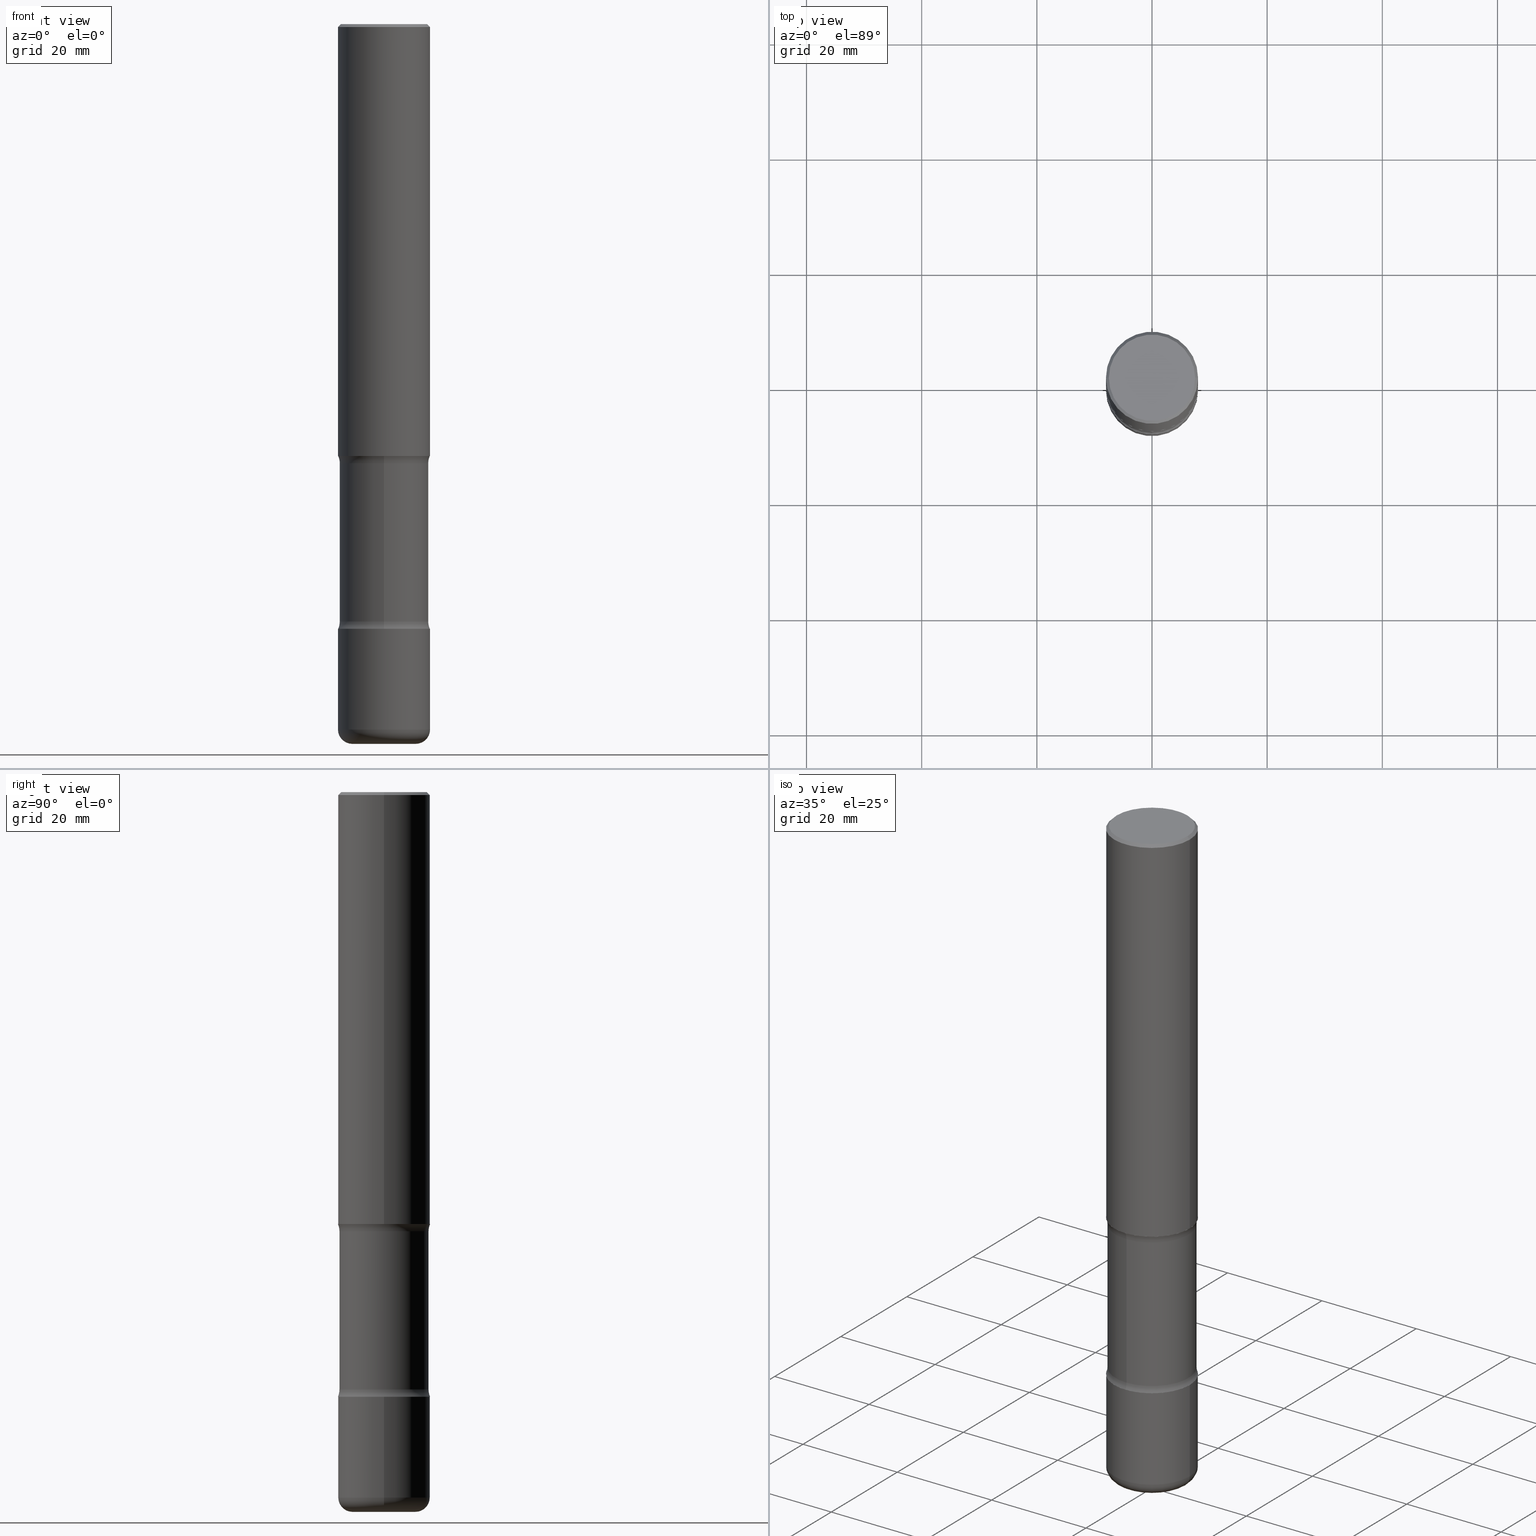
[diagram: canonical four-view strip — front | top / right | iso, engineering-drawing reading convention]
A machine part, canonical four-view strip (front | top / right | iso — engineering-drawing reading convention). The complete STEP part file that produces these views, byte-faithful:
ISO-10303-21;
HEADER;
FILE_DESCRIPTION (( 'STEP AP203' ),
    '1' );
FILE_NAME ('44835.STEP',
    '2024-03-02T03:43:14',
    ( '' ),
    ( '' ),
    'SwSTEP 2.0',
    'SolidWorks 2023',
    '' );
FILE_SCHEMA (( 'CONFIG_CONTROL_DESIGN' ));
ENDSEC;

DATA;
#1 = APPROVAL_PERSON_ORGANIZATION ( #419, #211, #329 ) ;
#2 = DIRECTION ( 'NONE',  ( 2.567670609238910692E-29, -3.316481401575452601E-15, -1.000000000000000000 ) ) ;
#3 = EDGE_LOOP ( 'NONE', ( #76, #196, #140, #171 ) ) ;
#4 = PERSON_AND_ORGANIZATION ( #470, #114 ) ;
#5 = EDGE_LOOP ( 'NONE', ( #474, #393, #135, #41 ) ) ;
#6 = FACE_OUTER_BOUND ( 'NONE', #102, .T. ) ;
#7 = ORIENTED_EDGE ( 'NONE', *, *, #360, .F. ) ;
#8 = AXIS2_PLACEMENT_3D ( 'NONE', #557, #471, #326 ) ;
#9 = EDGE_CURVE ( 'NONE', #260, #82, #488, .T. ) ;
#10 = CARTESIAN_POINT ( 'NONE',  ( 1.179425150535029431E-28, -1.683906534910660571E-14, -4.822899999999999743 ) ) ;
#11 = ORIENTED_EDGE ( 'NONE', *, *, #35, .T. ) ;
#12 = FACE_OUTER_BOUND ( 'NONE', #511, .T. ) ;
#13 = DIRECTION ( 'NONE',  ( 2.438088387897960049E-29, -3.491481338843145188E-15, -1.000000000000000000 ) ) ;
#14 = DIRECTION ( 'NONE',  ( 1.000000000000000000, -6.982962677686265922E-15, 0.000000000000000000 ) ) ;
#15 = ORIENTED_EDGE ( 'NONE', *, *, #301, .F. ) ;
#16 = ADVANCED_FACE ( 'NONE', ( #181 ), #535, .T. ) ;
#17 = COORDINATED_UNIVERSAL_TIME_OFFSET ( 5, 0, .BEHIND. ) ;
#18 = TOROIDAL_SURFACE ( 'NONE', #532, 0.4295500000000001539, 0.1249999999999999029 ) ;
#19 = CYLINDRICAL_SURFACE ( 'NONE', #79, 0.3045500000000001539 ) ;
#20 = DIRECTION ( 'NONE',  ( 2.567670609238910692E-29, -3.316481401575452601E-15, -1.000000000000000000 ) ) ;
#21 = LINE ( 'NONE', #234, #167 ) ;
#22 = FACE_OUTER_BOUND ( 'NONE', #289, .T. ) ;
#23 = DIRECTION ( 'NONE',  ( 1.000000000000000000, -6.982962677686266711E-15, 0.000000000000000000 ) ) ;
#24 = ADVANCED_FACE ( 'NONE', ( #97 ), #263, .T. ) ;
#25 = FACE_OUTER_BOUND ( 'NONE', #224, .T. ) ;
#26 = LINE ( 'NONE', #32, #236 ) ;
#27 = AXIS2_PLACEMENT_3D ( 'NONE', #353, #92, #54 ) ;
#28 = CIRCLE ( 'NONE', #515, 0.3045500000000002094 ) ;
#29 = CARTESIAN_POINT ( 'NONE',  ( 0.000000000000000000, 0.000000000000000000, 0.000000000000000000 ) ) ;
#30 = EDGE_CURVE ( 'NONE', #117, #390, #437, .T. ) ;
#31 = CARTESIAN_POINT ( 'NONE',  ( 1.010932349788873450E-28, -1.443343470664368071E-14, -4.133899999999999686 ) ) ;
#32 = CARTESIAN_POINT ( 'NONE',  ( 0.3149500000000000077, -2.199284095337289871E-15, 1.535751875536930130E-29 ) ) ;
#33 = DIMENSIONAL_EXPONENTS ( 1.000000000000000000, 0.000000000000000000, 0.000000000000000000, 0.000000000000000000, 0.000000000000000000, 0.000000000000000000, 0.000000000000000000 ) ;
#34 = LINE ( 'NONE', #501, #291 ) ;
#35 = EDGE_CURVE ( 'NONE', #387, #482, #280, .T. ) ;
#36 = DIRECTION ( 'NONE',  ( 2.567670609238910692E-29, -3.316481401575452995E-15, -1.000000000000000000 ) ) ;
#37 = AXIS2_PLACEMENT_3D ( 'NONE', #420, #411, #370 ) ;
#38 = APPROVAL_DATE_TIME ( #166, #211 ) ;
#39 = DIRECTION ( 'NONE',  ( 6.982962677686265922E-15, 1.000000000000000000, -3.316481401575452601E-15 ) ) ;
#40 = ORIENTED_EDGE ( 'NONE', *, *, #285, .T. ) ;
#41 = ORIENTED_EDGE ( 'NONE', *, *, #451, .F. ) ;
#42 =( NAMED_UNIT ( * ) PLANE_ANGLE_UNIT ( ) SI_UNIT ( $, .RADIAN. ) );
#43 = EDGE_CURVE ( 'NONE', #137, #390, #226, .T. ) ;
#44 = ORIENTED_EDGE ( 'NONE', *, *, #124, .F. ) ;
#45 = APPROVAL_STATUS ( 'not_yet_approved' ) ;
#46 = CARTESIAN_POINT ( 'NONE',  ( 1.203488563587891146E-28, -1.718262711284877024E-14, -4.921299999999999564 ) ) ;
#47 = CIRCLE ( 'NONE', #160, 0.1249999999999999029 ) ;
#48 = VERTEX_POINT ( 'NONE', #399 ) ;
#49 = PERSON_AND_ORGANIZATION_ROLE ( 'design_supplier' ) ;
#50 = DIRECTION ( 'NONE',  ( -2.445468806185136597E-29, 3.491481338843145583E-15, 1.000000000000000000 ) ) ;
#51 = ORIENTED_EDGE ( 'NONE', *, *, #441, .T. ) ;
#52 = APPROVAL ( #481, 'UNSPECIFIED' ) ;
#53 = CARTESIAN_POINT ( 'NONE',  ( 2.059624841783563274E-15, 0.2949499999999998789, -1.023409652156634744E-15 ) ) ;
#54 = DIRECTION ( 'NONE',  ( -1.000000000000000000, 7.105427357600994759E-15, 0.000000000000000000 ) ) ;
#55 = TOROIDAL_SURFACE ( 'NONE', #152, 0.4295500000000000429, 0.1249999999999998751 ) ;
#56 = DIRECTION ( 'NONE',  ( 1.000000000000000000, -6.982962677686265922E-15, 0.000000000000000000 ) ) ;
#57 = CARTESIAN_POINT ( 'NONE',  ( 2.937603563509088777E-28, 7.650886682985788601E-15, -4.921300000000000452 ) ) ;
#58 = CARTESIAN_POINT ( 'NONE',  ( 0.3149500000000002298, -1.903834944444389716E-14, -4.822899999999999743 ) ) ;
#59 = CARTESIAN_POINT ( 'NONE',  ( 0.3149499999999998967, -2.230543471175006266E-15, -0.02000000000000006981 ) ) ;
#60 = EDGE_CURVE ( 'NONE', #165, #206, #342, .T. ) ;
#61 = EDGE_LOOP ( 'NONE', ( #268, #337, #443, #467 ) ) ;
#62 = DIRECTION ( 'NONE',  ( 1.000000000000000000, -6.982962677686266711E-15, 4.876176775795936353E-29 ) ) ;
#63 = CARTESIAN_POINT ( 'NONE',  ( 4.890937612370289799E-31, -6.982962677686315028E-17, -0.02000000000000006981 ) ) ;
#64 = CIRCLE ( 'NONE', #217, 0.3149500000000001743 ) ;
#65 = AXIS2_PLACEMENT_3D ( 'NONE', #200, #20, #334 ) ;
#66 = DIRECTION ( 'NONE',  ( -2.445468806185136597E-29, 3.491481338843145583E-15, 1.000000000000000000 ) ) ;
#67 = CARTESIAN_POINT ( 'NONE',  ( 2.126661283489452747E-15, 0.3045499999999858320, -4.083981666694491253 ) ) ;
#68 = DIRECTION ( 'NONE',  ( 6.982962677686265922E-15, 1.000000000000000000, -3.588045304435082954E-15 ) ) ;
#69 = EDGE_CURVE ( 'NONE', #80, #82, #427, .T. ) ;
#70 = FACE_OUTER_BOUND ( 'NONE', #487, .T. ) ;
#71 = AXIS2_PLACEMENT_3D ( 'NONE', #10, #426, #259 ) ;
#72 = FACE_OUTER_BOUND ( 'NONE', #61, .T. ) ;
#73 = AXIS2_PLACEMENT_3D ( 'NONE', #505, #109, #39 ) ;
#74 = CC_DESIGN_APPROVAL ( #52, ( #218 ) ) ;
#75 = ADVANCED_FACE ( 'NONE', ( #25 ), #96, .F. ) ;
#76 = ORIENTED_EDGE ( 'NONE', *, *, #261, .T. ) ;
#77 = AXIS2_PLACEMENT_3D ( 'NONE', #357, #325, #94 ) ;
#78 = CYLINDRICAL_SURFACE ( 'NONE', #281, 0.3149500000000001743 ) ;
#79 = AXIS2_PLACEMENT_3D ( 'NONE', #231, #394, #188 ) ;
#80 = VERTEX_POINT ( 'NONE', #58 ) ;
#81 = DIRECTION ( 'NONE',  ( 2.567670609238910692E-29, -3.316481401575452601E-15, -1.000000000000000000 ) ) ;
#82 = VERTEX_POINT ( 'NONE', #403 ) ;
#83 = PERSON_AND_ORGANIZATION_ROLE ( 'design_owner' ) ;
#84 = ORIENTED_EDGE ( 'NONE', *, *, #91, .T. ) ;
#85 = MECHANICAL_CONTEXT ( 'NONE', #194, 'mechanical' ) ;
#86 = CARTESIAN_POINT ( 'NONE',  ( 7.204821578607410083E-29, -1.068189174724828138E-14, -3.002718333305510523 ) ) ;
#87 = CIRCLE ( 'NONE', #8, 0.1249999999999999029 ) ;
#88 = AXIS2_PLACEMENT_3D ( 'NONE', #209, #553, #125 ) ;
#89 = EDGE_LOOP ( 'NONE', ( #311, #434 ) ) ;
#90 = CARTESIAN_POINT ( 'NONE',  ( -2.125039254809662113E-15, -0.3045500000000108676, -3.002718333305509191 ) ) ;
#91 = EDGE_CURVE ( 'NONE', #485, #117, #26, .T. ) ;
#92 = DIRECTION ( 'NONE',  ( 7.105427357601001859E-15, 1.000000000000000000, -3.491481338843145583E-15 ) ) ;
#93 = ORIENTED_EDGE ( 'NONE', *, *, #43, .T. ) ;
#94 = DIRECTION ( 'NONE',  ( 6.982962677686265922E-15, 1.000000000000000000, -3.316481401575452601E-15 ) ) ;
#95 = MANIFOLD_SOLID_BREP ( 'Body-Move/Copy2[1]', #151 ) ;
#96 = TOROIDAL_SURFACE ( 'NONE', #77, 0.4295500000000001539, 0.1249999999999999029 ) ;
#97 = FACE_OUTER_BOUND ( 'NONE', #257, .T. ) ;
#98 = CIRCLE ( 'NONE', #256, 0.3149500000000001743 ) ;
#99 = PLANE ( 'NONE',  #428 ) ;
#100 = ORIENTED_EDGE ( 'NONE', *, *, #172, .F. ) ;
#101 = DIRECTION ( 'NONE',  ( 6.982962677686265922E-15, 1.000000000000000000, -3.588045304435084532E-15 ) ) ;
#102 = EDGE_LOOP ( 'NONE', ( #503, #526 ) ) ;
#103 = DIRECTION ( 'NONE',  ( 2.567670609238910692E-29, -3.316481401575452601E-15, -1.000000000000000000 ) ) ;
#104 = VECTOR ( 'NONE', #402, 39.37007874015748143 ) ;
#105 = DIRECTION ( 'NONE',  ( 6.982962677686264344E-15, 1.000000000000000000, -3.469564049740291192E-15 ) ) ;
#106 = ADVANCED_FACE ( 'NONE', ( #383 ), #304, .T. ) ;
#107 = LINE ( 'NONE', #59, #490 ) ;
#108 = ORIENTED_EDGE ( 'NONE', *, *, #380, .F. ) ;
#109 = DIRECTION ( 'NONE',  ( 2.567670609238910692E-29, -3.316481401575452601E-15, -1.000000000000000000 ) ) ;
#110 = DIRECTION ( 'NONE',  ( -1.000000000000000000, 6.982962677686265922E-15, -4.876176775795935793E-29 ) ) ;
#111 = CLOSED_SHELL ( 'NONE', ( #344, #205, #504, #241, #476, #284 ) ) ;
#112 = CIRCLE ( 'NONE', #323, 0.1249999999999999029 ) ;
#113 = EDGE_CURVE ( 'NONE', #336, #80, #176, .T. ) ;
#114 = ORGANIZATION ( 'UNSPECIFIED', 'UNSPECIFIED', '' ) ;
#115 = ORIENTED_EDGE ( 'NONE', *, *, #494, .F. ) ;
#116 = CARTESIAN_POINT ( 'NONE',  ( 1.179425150535029431E-28, -1.683906534910660571E-14, -4.822899999999999743 ) ) ;
#117 = VERTEX_POINT ( 'NONE', #174 ) ;
#118 = EDGE_CURVE ( 'NONE', #265, #48, #385, .T. ) ;
#119 = COORDINATED_UNIVERSAL_TIME_OFFSET ( 5, 0, .BEHIND. ) ;
#120 = CARTESIAN_POINT ( 'NONE',  ( 2.199284095337390845E-15, 0.3149499999999856859, -4.133900000000000574 ) ) ;
#121 = CIRCLE ( 'NONE', #405, 0.3149499999999998967 ) ;
#122 =( GEOMETRIC_REPRESENTATION_CONTEXT ( 3 ) GLOBAL_UNCERTAINTY_ASSIGNED_CONTEXT ( ( #462 ) ) GLOBAL_UNIT_ASSIGNED_CONTEXT ( ( #287, #42, #368 ) ) REPRESENTATION_CONTEXT ( 'NONE', 'WORKASPACE' ) );
#123 = EDGE_LOOP ( 'NONE', ( #341, #446 ) ) ;
#124 = EDGE_CURVE ( 'NONE', #387, #492, #376, .T. ) ;
#125 = DIRECTION ( 'NONE',  ( 6.982962677686265922E-15, 1.000000000000000000, -3.588045304435084532E-15 ) ) ;
#126 = ORIENTED_EDGE ( 'NONE', *, *, #220, .T. ) ;
#127 = CARTESIAN_POINT ( 'NONE',  ( 1.010932349788873450E-28, -1.443343470664368071E-14, -4.133899999999999686 ) ) ;
#128 = CALENDAR_DATE ( 2024, 1, 3 ) ;
#129 = ORIENTED_EDGE ( 'NONE', *, *, #91, .F. ) ;
#130 = ADVANCED_FACE ( 'NONE', ( #6 ), #305, .F. ) ;
#131 = DIRECTION ( 'NONE',  ( 1.000000000000000000, -6.982962677686256455E-15, 0.000000000000000000 ) ) ;
#132 = AXIS2_PLACEMENT_3D ( 'NONE', #364, #278, #509 ) ;
#133 = AXIS2_PLACEMENT_3D ( 'NONE', #525, #254, #170 ) ;
#134 = PRODUCT_DEFINITION_FORMATION_WITH_SPECIFIED_SOURCE ( 'ANY', '', #155, .NOT_KNOWN. ) ;
#135 = ORIENTED_EDGE ( 'NONE', *, *, #528, .T. ) ;
#136 = DIRECTION ( 'NONE',  ( 2.567670609238910692E-29, -3.316481401575452601E-15, -1.000000000000000000 ) ) ;
#137 = VERTEX_POINT ( 'NONE', #142 ) ;
#138 = SHAPE_DEFINITION_REPRESENTATION ( #508, #486 ) ;
#139 = DIRECTION ( 'NONE',  ( 6.982962677686265922E-15, 1.000000000000000000, -3.316481401575452995E-15 ) ) ;
#140 = ORIENTED_EDGE ( 'NONE', *, *, #69, .F. ) ;
#141 = DIRECTION ( 'NONE',  ( -2.445468806185136597E-29, 3.491481338843145583E-15, 1.000000000000000000 ) ) ;
#142 = CARTESIAN_POINT ( 'NONE',  ( -0.2949499999999998789, 2.094539655171994924E-15, 1.280553747028670770E-17 ) ) ;
#143 = AXIS2_PLACEMENT_3D ( 'NONE', #127, #2, #215 ) ;
#144 = ORIENTED_EDGE ( 'NONE', *, *, #156, .F. ) ;
#145 = AXIS2_PLACEMENT_3D ( 'NONE', #310, #493, #101 ) ;
#146 = DIRECTION ( 'NONE',  ( -1.000000000000000000, 6.982962677686265922E-15, -4.876176775795935793E-29 ) ) ;
#147 = CARTESIAN_POINT ( 'NONE',  ( 0.000000000000000000, 0.000000000000000000, 0.000000000000000000 ) ) ;
#148 = DIRECTION ( 'NONE',  ( 2.438088387897960049E-29, -3.491481338843145188E-15, -1.000000000000000000 ) ) ;
#149 = CARTESIAN_POINT ( 'NONE',  ( 4.890937612370289799E-31, -6.982962677686315028E-17, -0.02000000000000006981 ) ) ;
#150 = CC_DESIGN_PERSON_AND_ORGANIZATION_ASSIGNMENT ( #514, #294, ( #197 ) ) ;
#151 = CLOSED_SHELL ( 'NONE', ( #16, #106, #24, #250, #457, #350 ) ) ;
#152 = AXIS2_PLACEMENT_3D ( 'NONE', #199, #506, #408 ) ;
#153 = DIRECTION ( 'NONE',  ( -2.445468806185136597E-29, 3.491481338843145583E-15, 1.000000000000000000 ) ) ;
#154 = DIRECTION ( 'NONE',  ( 2.567670609238910692E-29, -3.316481401575452601E-15, -1.000000000000000000 ) ) ;
#155 = PRODUCT ( '44835', '44835', '', ( #85 ) ) ;
#156 = EDGE_CURVE ( 'NONE', #260, #336, #210, .T. ) ;
#157 = CARTESIAN_POINT ( 'NONE',  ( 4.890937612370289799E-31, -6.982962677686315028E-17, -0.02000000000000006981 ) ) ;
#158 = FACE_OUTER_BOUND ( 'NONE', #5, .T. ) ;
#159 = DIRECTION ( 'NONE',  ( 1.000000000000000000, -6.982962677686267499E-15, 4.876053491004736589E-29 ) ) ;
#160 = AXIS2_PLACEMENT_3D ( 'NONE', #177, #221, #389 ) ;
#161 = DIRECTION ( 'NONE',  ( 1.000000000000000000, -6.982962677686272233E-15, 0.000000000000000000 ) ) ;
#162 = LINE ( 'NONE', #328, #193 ) ;
#163 = ORIENTED_EDGE ( 'NONE', *, *, #69, .T. ) ;
#164 = CC_DESIGN_DATE_AND_TIME_ASSIGNMENT ( #410, #469, ( #197 ) ) ;
#165 = VERTEX_POINT ( 'NONE', #491 ) ;
#166 = DATE_AND_TIME ( #558, #282 ) ;
#167 = VECTOR ( 'NONE', #454, 39.37007874015748143 ) ;
#168 = EDGE_LOOP ( 'NONE', ( #440, #478 ) ) ;
#169 =( LENGTH_UNIT ( ) NAMED_UNIT ( * ) SI_UNIT ( $, .METRE. ) );
#170 = DIRECTION ( 'NONE',  ( -1.000000000000000000, 6.982962677686265922E-15, 0.000000000000000000 ) ) ;
#171 = ORIENTED_EDGE ( 'NONE', *, *, #113, .F. ) ;
#172 = EDGE_CURVE ( 'NONE', #492, #308, #47, .T. ) ;
#173 = PERSON_AND_ORGANIZATION ( #470, #114 ) ;
#174 = CARTESIAN_POINT ( 'NONE',  ( 0.3149499999999998967, -2.230543471175006266E-15, -0.02000000000000006981 ) ) ;
#175 = ORIENTED_EDGE ( 'NONE', *, *, #43, .F. ) ;
#176 = CIRCLE ( 'NONE', #498, 0.09840000000000007074 ) ;
#177 = CARTESIAN_POINT ( 'NONE',  ( -2.946926914942662145E-15, -0.4295500000000144203, -4.083981666694488588 ) ) ;
#178 = AXIS2_PLACEMENT_3D ( 'NONE', #157, #539, #321 ) ;
#179 = EDGE_LOOP ( 'NONE', ( #422, #183, #292, #302 ) ) ;
#180 = CARTESIAN_POINT ( 'NONE',  ( 7.220980290903470182E-29, -1.030964609733603853E-14, -2.952799999999999869 ) ) ;
#181 = FACE_OUTER_BOUND ( 'NONE', #214, .T. ) ;
#182 = DIRECTION ( 'NONE',  ( -2.445468806185136877E-29, 3.491481338843145188E-15, 1.000000000000000000 ) ) ;
#183 = ORIENTED_EDGE ( 'NONE', *, *, #172, .T. ) ;
#184 = DIRECTION ( 'NONE',  ( -2.445468806185136597E-29, 3.491481338843145583E-15, 1.000000000000000000 ) ) ;
#185 = ORIENTED_EDGE ( 'NONE', *, *, #245, .F. ) ;
#186 = VECTOR ( 'NONE', #36, 39.37007874015748143 ) ;
#187 = DATE_AND_TIME ( #444, #460 ) ;
#188 = DIRECTION ( 'NONE',  ( 6.982962677686267499E-15, 1.000000000000000000, -3.588045304435083743E-15 ) ) ;
#189 = ADVANCED_FACE ( 'NONE', ( #297 ), #18, .F. ) ;
#190 = CARTESIAN_POINT ( 'NONE',  ( 1.203488563587891146E-28, -1.718262711284877024E-14, -4.921299999999999564 ) ) ;
#191 = DIRECTION ( 'NONE',  ( 1.000000000000000000, -6.982962677686265922E-15, 0.000000000000000000 ) ) ;
#192 = CARTESIAN_POINT ( 'NONE',  ( 7.220980290903470182E-29, -1.030964609733603853E-14, -2.952799999999999869 ) ) ;
#193 = VECTOR ( 'NONE', #510, 39.37007874015748143 ) ;
#194 = APPLICATION_CONTEXT ( 'configuration controlled 3d designs of mechanical parts and assemblies' ) ;
#195 = CARTESIAN_POINT ( 'NONE',  ( 0.3149500000000001743, -1.250893019267332998E-14, -2.952799999999999869 ) ) ;
#196 = ORIENTED_EDGE ( 'NONE', *, *, #9, .T. ) ;
#197 = PRODUCT_DEFINITION ( 'UNKNOWN', '', #134, #240 ) ;
#198 = DATE_TIME_ROLE ( 'classification_date' ) ;
#199 = CARTESIAN_POINT ( 'NONE',  ( 7.199981073502327876E-29, -1.068882362606320242E-14, -3.002718333305510523 ) ) ;
#200 = CARTESIAN_POINT ( 'NONE',  ( 7.076647741316658442E-29, -1.051633852324290964E-14, -2.952799999999999869 ) ) ;
#201 = PERSON_AND_ORGANIZATION_ROLE ( 'classification_officer' ) ;
#202 = AXIS2_PLACEMENT_3D ( 'NONE', #53, #148, #315 ) ;
#203 = VERTEX_POINT ( 'NONE', #90 ) ;
#204 = DIRECTION ( 'NONE',  ( 1.000000000000000000, 0.000000000000000000, 0.000000000000000000 ) ) ;
#205 = ADVANCED_FACE ( 'NONE', ( #12 ), #459, .T. ) ;
#206 = VERTEX_POINT ( 'NONE', #295 ) ;
#207 = DIRECTION ( 'NONE',  ( -2.445468806185136597E-29, 3.491481338843145583E-15, 1.000000000000000000 ) ) ;
#208 = ORIENTED_EDGE ( 'NONE', *, *, #253, .F. ) ;
#209 = CARTESIAN_POINT ( 'NONE',  ( 9.981149660597986220E-29, -1.426788148263830897E-14, -4.083981666694489476 ) ) ;
#210 = CIRCLE ( 'NONE', #531, 0.2165500000000002145 ) ;
#211 = APPROVAL ( #415, 'UNSPECIFIED' ) ;
#212 = EDGE_LOOP ( 'NONE', ( #375, #417, #290, #15 ) ) ;
#213 = SECURITY_CLASSIFICATION_LEVEL ( 'unclassified' ) ;
#214 = EDGE_LOOP ( 'NONE', ( #163, #371, #384, #520 ) ) ;
#215 = DIRECTION ( 'NONE',  ( 6.982962677686264344E-15, 1.000000000000000000, -3.469564049740291192E-15 ) ) ;
#216 = VERTEX_POINT ( 'NONE', #477 ) ;
#217 = AXIS2_PLACEMENT_3D ( 'NONE', #116, #373, #161 ) ;
#218 = SECURITY_CLASSIFICATION ( '', '', #213 ) ;
#219 = APPLICATION_CONTEXT ( 'configuration controlled 3d designs of mechanical parts and assemblies' ) ;
#220 = EDGE_CURVE ( 'NONE', #286, #203, #28, .T. ) ;
#221 = DIRECTION ( 'NONE',  ( 1.000000000000000000, -6.860497997771530774E-15, 4.842942010754402141E-29 ) ) ;
#222 = ORIENTED_EDGE ( 'NONE', *, *, #554, .F. ) ;
#223 = DIRECTION ( 'NONE',  ( 1.000000000000000000, -6.982962677686269866E-15, 4.883557194083114022E-29 ) ) ;
#224 = EDGE_LOOP ( 'NONE', ( #100, #44, #11, #251 ) ) ;
#225 = CARTESIAN_POINT ( 'NONE',  ( 1.010932349788873450E-28, -1.443343470664368071E-14, -4.133899999999999686 ) ) ;
#226 = LINE ( 'NONE', #450, #332 ) ;
#227 = CIRCLE ( 'NONE', #449, 0.3149500000000001743 ) ;
#228 = CC_DESIGN_DATE_AND_TIME_ASSIGNMENT ( #273, #198, ( #218 ) ) ;
#229 = LOCAL_TIME ( 22, 43, 14.00000000000000000, #119 ) ;
#230 = PLANE ( 'NONE',  #395 ) ;
#231 = CARTESIAN_POINT ( 'NONE',  ( 1.213110733560345635E-28, -1.704483216224419265E-14, -4.921300000000000452 ) ) ;
#232 = DIRECTION ( 'NONE',  ( -0.7071067811865459074, 2.468850131082240100E-15, -0.7071067811865491270 ) ) ;
#233 = CARTESIAN_POINT ( 'NONE',  ( -2.160713844398043177E-15, -0.3149500000000144961, -4.133899999999998798 ) ) ;
#234 = CARTESIAN_POINT ( 'NONE',  ( -0.3149500000000000077, 2.237854346276435590E-15, -1.549218606675782676E-29 ) ) ;
#235 = CYLINDRICAL_SURFACE ( 'NONE', #237, 0.3149500000000000077 ) ;
#236 = VECTOR ( 'NONE', #182, 39.37007874015748143 ) ;
#237 = AXIS2_PLACEMENT_3D ( 'NONE', #404, #184, #62 ) ;
#238 = CARTESIAN_POINT ( 'NONE',  ( -3.131554243005659264E-46, 4.471029511141341874E-32, 1.280553747030123384E-17 ) ) ;
#239 = CARTESIAN_POINT ( 'NONE',  ( 1.213110733560345635E-28, -1.704483216224419265E-14, -4.921300000000000452 ) ) ;
#240 = DESIGN_CONTEXT ( 'detailed design', #219, 'design' ) ;
#241 = ADVANCED_FACE ( 'NONE', ( #484 ), #435, .F. ) ;
#242 = PLANE ( 'NONE',  #37 ) ;
#243 = ORIENTED_EDGE ( 'NONE', *, *, #261, .F. ) ;
#244 = AXIS2_PLACEMENT_3D ( 'NONE', #63, #313, #191 ) ;
#245 = EDGE_CURVE ( 'NONE', #216, #485, #262, .T. ) ;
#246 = AXIS2_PLACEMENT_3D ( 'NONE', #551, #207, #369 ) ;
#247 = PERSON_AND_ORGANIZATION ( #470, #114 ) ;
#248 = CARTESIAN_POINT ( 'NONE',  ( 0.000000000000000000, 0.000000000000000000, 0.000000000000000000 ) ) ;
#249 = COORDINATED_UNIVERSAL_TIME_OFFSET ( 5, 0, .BEHIND. ) ;
#250 = ADVANCED_FACE ( 'NONE', ( #355 ), #333, .T. ) ;
#251 = ORIENTED_EDGE ( 'NONE', *, *, #554, .T. ) ;
#252 = COORDINATED_UNIVERSAL_TIME_OFFSET ( 5, 0, .BEHIND. ) ;
#253 = EDGE_CURVE ( 'NONE', #485, #216, #98, .T. ) ;
#254 = DIRECTION ( 'NONE',  ( 2.445468806185136597E-29, -3.491481338843145583E-15, -1.000000000000000000 ) ) ;
#255 = ORIENTED_EDGE ( 'NONE', *, *, #339, .F. ) ;
#256 = AXIS2_PLACEMENT_3D ( 'NONE', #502, #541, #14 ) ;
#257 = EDGE_LOOP ( 'NONE', ( #243, #144 ) ) ;
#258 = EDGE_LOOP ( 'NONE', ( #359, #513, #530, #108 ) ) ;
#259 = DIRECTION ( 'NONE',  ( 1.000000000000000000, -6.982962677686269866E-15, 4.883557194083114022E-29 ) ) ;
#260 = VERTEX_POINT ( 'NONE', #500 ) ;
#261 = EDGE_CURVE ( 'NONE', #336, #260, #386, .T. ) ;
#262 = CIRCLE ( 'NONE', #499, 0.3149500000000001743 ) ;
#263 = PLANE ( 'NONE',  #447 ) ;
#264 = CARTESIAN_POINT ( 'NONE',  ( 1.010932349788873450E-28, -1.443343470664368071E-14, -4.133899999999999686 ) ) ;
#265 = VERTEX_POINT ( 'NONE', #537 ) ;
#266 = CARTESIAN_POINT ( 'NONE',  ( 0.2165500000000002145, -1.869478768070173264E-14, -4.921299999999999564 ) ) ;
#267 = ADVANCED_FACE ( 'NONE', ( #318 ), #19, .T. ) ;
#268 = ORIENTED_EDGE ( 'NONE', *, *, #421, .F. ) ;
#269 = MANIFOLD_SOLID_BREP ( 'Body-Move/Copy2[4]', #560 ) ;
#270 = CYLINDRICAL_SURFACE ( 'NONE', #272, 0.3149500000000000077 ) ;
#271 = AXIS2_PLACEMENT_3D ( 'NONE', #147, #347, #529 ) ;
#272 = AXIS2_PLACEMENT_3D ( 'NONE', #29, #66, #358 ) ;
#273 = DATE_AND_TIME ( #463, #414 ) ;
#274 = CARTESIAN_POINT ( 'NONE',  ( 1.179425150535029431E-28, -1.683906534910660571E-14, -4.822899999999999743 ) ) ;
#275 = MANIFOLD_SOLID_BREP ( 'Body-Move/Copy2[2]', #111 ) ;
#276 = EDGE_CURVE ( 'NONE', #492, #387, #227, .T. ) ;
#277 = CARTESIAN_POINT ( 'NONE',  ( 2.999531618200207687E-15, 0.4295499999999893292, -3.002718333305511855 ) ) ;
#278 = DIRECTION ( 'NONE',  ( -1.000000000000000000, 6.982962677686265922E-15, -4.883557194083112901E-29 ) ) ;
#279 = APPROVAL ( #45, 'UNSPECIFIED' ) ;
#280 = CIRCLE ( 'NONE', #132, 0.1249999999999999029 ) ;
#281 = AXIS2_PLACEMENT_3D ( 'NONE', #248, #330, #416 ) ;
#282 = LOCAL_TIME ( 22, 43, 14.00000000000000000, #252 ) ;
#283 = CARTESIAN_POINT ( 'NONE',  ( 0.2949499999999998789, -2.127023677808859286E-15, 1.280553747031587399E-17 ) ) ;
#284 = ADVANCED_FACE ( 'NONE', ( #538 ), #270, .T. ) ;
#285 = EDGE_CURVE ( 'NONE', #390, #117, #121, .T. ) ;
#286 = VERTEX_POINT ( 'NONE', #453 ) ;
#287 =( CONVERSION_BASED_UNIT ( 'INCH', #381 ) LENGTH_UNIT ( ) NAMED_UNIT ( #33 ) );
#288 = DIRECTION ( 'NONE',  ( -2.445468806185136597E-29, 3.491481338843145583E-15, 1.000000000000000000 ) ) ;
#289 = EDGE_LOOP ( 'NONE', ( #472, #115, #93, #40 ) ) ;
#290 = ORIENTED_EDGE ( 'NONE', *, *, #546, .T. ) ;
#291 = VECTOR ( 'NONE', #397, 39.37007874015748143 ) ;
#292 = ORIENTED_EDGE ( 'NONE', *, *, #360, .T. ) ;
#293 = APPROVAL_DATE_TIME ( #516, #279 ) ;
#294 = PERSON_AND_ORGANIZATION_ROLE ( 'creator' ) ;
#295 = CARTESIAN_POINT ( 'NONE',  ( -2.160713844398075915E-15, -0.3149500000000109434, -2.952799999999998537 ) ) ;
#296 = CIRCLE ( 'NONE', #438, 0.3045500000000002094 ) ;
#297 = FACE_OUTER_BOUND ( 'NONE', #179, .T. ) ;
#298 = ORIENTED_EDGE ( 'NONE', *, *, #30, .T. ) ;
#299 = CARTESIAN_POINT ( 'NONE',  ( 1.179425150535029431E-28, -1.683906534910660571E-14, -4.822899999999999743 ) ) ;
#300 = DIRECTION ( 'NONE',  ( 6.982962677686265922E-15, 1.000000000000000000, -3.588045304435082954E-15 ) ) ;
#301 = EDGE_CURVE ( 'NONE', #286, #165, #112, .T. ) ;
#302 = ORIENTED_EDGE ( 'NONE', *, *, #35, .F. ) ;
#303 = EDGE_LOOP ( 'NONE', ( #208, #185 ) ) ;
#304 = TOROIDAL_SURFACE ( 'NONE', #71, 0.2165500000000002145, 0.09840000000000008462 ) ;
#305 = PLANE ( 'NONE',  #458 ) ;
#306 = CIRCLE ( 'NONE', #145, 0.3045500000000000984 ) ;
#307 = CC_DESIGN_SECURITY_CLASSIFICATION ( #218, ( #134 ) ) ;
#308 = VERTEX_POINT ( 'NONE', #354 ) ;
#309 = EDGE_CURVE ( 'NONE', #203, #286, #296, .T. ) ;
#310 = CARTESIAN_POINT ( 'NONE',  ( 9.981149660597986220E-29, -1.426788148263830897E-14, -4.083981666694489476 ) ) ;
#311 = ORIENTED_EDGE ( 'NONE', *, *, #494, .T. ) ;
#312 = DIRECTION ( 'NONE',  ( -1.000000000000000000, 6.982962677686265922E-15, -4.883557194083112901E-29 ) ) ;
#313 = DIRECTION ( 'NONE',  ( -2.445468806185136597E-29, 3.491481338843145583E-15, 1.000000000000000000 ) ) ;
#314 = CARTESIAN_POINT ( 'NONE',  ( 7.220980290903470182E-29, -1.030964609733603853E-14, -2.952799999999999869 ) ) ;
#315 = DIRECTION ( 'NONE',  ( -1.000000000000000000, 6.982962677686265922E-15, -4.876176775795935793E-29 ) ) ;
#316 = AXIS2_PLACEMENT_3D ( 'NONE', #423, #391, #547 ) ;
#317 = CIRCLE ( 'NONE', #343, 0.2949499999999998789 ) ;
#318 = FACE_OUTER_BOUND ( 'NONE', #331, .T. ) ;
#319 = EDGE_CURVE ( 'NONE', #425, #117, #107, .T. ) ;
#320 = DIRECTION ( 'NONE',  ( -2.445468806185136597E-29, 3.491481338843145583E-15, 1.000000000000000000 ) ) ;
#321 = DIRECTION ( 'NONE',  ( -1.000000000000000000, 6.982962677686265922E-15, 0.000000000000000000 ) ) ;
#322 = LINE ( 'NONE', #559, #186 ) ;
#323 = AXIS2_PLACEMENT_3D ( 'NONE', #277, #312, #496 ) ;
#324 = CIRCLE ( 'NONE', #88, 0.3045500000000000984 ) ;
#325 = DIRECTION ( 'NONE',  ( 2.567670609238910692E-29, -3.316481401575452601E-15, -1.000000000000000000 ) ) ;
#326 = DIRECTION ( 'NONE',  ( 6.860497997771529985E-15, 1.000000000000000000, 0.000000000000000000 ) ) ;
#327 = CC_DESIGN_PERSON_AND_ORGANIZATION_ASSIGNMENT ( #429, #49, ( #134 ) ) ;
#328 = CARTESIAN_POINT ( 'NONE',  ( -2.089364665221199401E-15, -0.3045500000000171958, -4.921299999999999564 ) ) ;
#329 = APPROVAL_ROLE ( '' ) ;
#330 = DIRECTION ( 'NONE',  ( -2.445468806185136597E-29, 3.491481338843145583E-15, 1.000000000000000000 ) ) ;
#331 = EDGE_LOOP ( 'NONE', ( #436, #517, #432, #7 ) ) ;
#332 = VECTOR ( 'NONE', #232, 39.37007874015748143 ) ;
#333 = TOROIDAL_SURFACE ( 'NONE', #479, 0.2165500000000002145, 0.09840000000000008462 ) ;
#334 = DIRECTION ( 'NONE',  ( 6.982962677686265922E-15, 1.000000000000000000, -3.469564049740288825E-15 ) ) ;
#335 = AXIS2_PLACEMENT_3D ( 'NONE', #556, #372, #204 ) ;
#336 = VERTEX_POINT ( 'NONE', #266 ) ;
#337 = ORIENTED_EDGE ( 'NONE', *, *, #220, .F. ) ;
#338 = COORDINATED_UNIVERSAL_TIME_OFFSET ( 5, 0, .BEHIND. ) ;
#339 = EDGE_CURVE ( 'NONE', #216, #390, #21, .T. ) ;
#340 = DIRECTION ( 'NONE',  ( -2.445468806185136597E-29, 3.491481338843145583E-15, 1.000000000000000000 ) ) ;
#341 = ORIENTED_EDGE ( 'NONE', *, *, #124, .T. ) ;
#342 = CIRCLE ( 'NONE', #316, 0.3149500000000003963 ) ;
#343 = AXIS2_PLACEMENT_3D ( 'NONE', #238, #356, #159 ) ;
#344 = ADVANCED_FACE ( 'NONE', ( #70 ), #235, .T. ) ;
#345 = DIRECTION ( 'NONE',  ( 6.982962677686265922E-15, 1.000000000000000000, -3.316481401575452601E-15 ) ) ;
#346 = ORIENTED_EDGE ( 'NONE', *, *, #30, .F. ) ;
#347 = DIRECTION ( 'NONE',  ( -2.445468806185136597E-29, 3.491481338843145583E-15, 1.000000000000000000 ) ) ;
#348 = DIRECTION ( 'NONE',  ( 2.567670609238910692E-29, -3.316481401575452601E-15, -1.000000000000000000 ) ) ;
#349 = ORIENTED_EDGE ( 'NONE', *, *, #253, .T. ) ;
#350 = ADVANCED_FACE ( 'NONE', ( #543 ), #99, .F. ) ;
#351 = DIRECTION ( 'NONE',  ( -2.445468806185136597E-29, 3.491481338843145583E-15, 1.000000000000000000 ) ) ;
#352 = AXIS2_PLACEMENT_3D ( 'NONE', #190, #320, #23 ) ;
#353 = CARTESIAN_POINT ( 'NONE',  ( -0.2165500000000002145, -1.530038505481810704E-14, -4.822899999999999743 ) ) ;
#354 = CARTESIAN_POINT ( 'NONE',  ( -2.125039254809631347E-15, -0.3045500000000143648, -4.083981666694488588 ) ) ;
#355 = FACE_OUTER_BOUND ( 'NONE', #258, .T. ) ;
#356 = DIRECTION ( 'NONE',  ( -2.445468806185136597E-29, 3.491481338843145583E-15, 1.000000000000000000 ) ) ;
#357 = CARTESIAN_POINT ( 'NONE',  ( 9.987249770933360276E-29, -1.425914577744133888E-14, -4.083981666694490364 ) ) ;
#358 = DIRECTION ( 'NONE',  ( 1.000000000000000000, -6.982962677686266711E-15, 4.876176775795936353E-29 ) ) ;
#359 = ORIENTED_EDGE ( 'NONE', *, *, #9, .F. ) ;
#360 = EDGE_CURVE ( 'NONE', #308, #482, #306, .T. ) ;
#361 = CIRCLE ( 'NONE', #65, 0.3149500000000003963 ) ;
#362 = FACE_OUTER_BOUND ( 'NONE', #303, .T. ) ;
#363 = DIRECTION ( 'NONE',  ( 0.7071067811865459074, -7.319954787623249734E-15, -0.7071067811865491270 ) ) ;
#364 = CARTESIAN_POINT ( 'NONE',  ( 2.999531618200236480E-15, 0.4295499999999858876, -4.083981666694492141 ) ) ;
#365 = ADVANCED_FACE ( 'NONE', ( #445 ), #242, .F. ) ;
#366 = TOROIDAL_SURFACE ( 'NONE', #73, 0.4295500000000000429, 0.1249999999999998751 ) ;
#367 = APPROVAL_PERSON_ORGANIZATION ( #4, #279, #521 ) ;
#368 =( NAMED_UNIT ( * ) SI_UNIT ( $, .STERADIAN. ) SOLID_ANGLE_UNIT ( ) );
#369 = DIRECTION ( 'NONE',  ( 1.000000000000000000, -6.982962677686267499E-15, 4.876053491004736589E-29 ) ) ;
#370 = DIRECTION ( 'NONE',  ( -6.982962677686265922E-15, -1.000000000000000000, 3.316481401575452995E-15 ) ) ;
#371 = ORIENTED_EDGE ( 'NONE', *, *, #489, .T. ) ;
#372 = DIRECTION ( 'NONE',  ( 0.000000000000000000, 0.000000000000000000, 1.000000000000000000 ) ) ;
#373 = DIRECTION ( 'NONE',  ( -2.445468806185136597E-29, 3.491481338843145583E-15, 1.000000000000000000 ) ) ;
#374 = CC_DESIGN_PERSON_AND_ORGANIZATION_ASSIGNMENT ( #247, #83, ( #155 ) ) ;
#375 = ORIENTED_EDGE ( 'NONE', *, *, #309, .F. ) ;
#376 = CIRCLE ( 'NONE', #143, 0.3149500000000001743 ) ;
#377 = CIRCLE ( 'NONE', #540, 0.3149500000000001743 ) ;
#378 = APPLICATION_PROTOCOL_DEFINITION ( 'international standard', 'config_control_design', 1994, #194 ) ;
#379 = ORIENTED_EDGE ( 'NONE', *, *, #319, .T. ) ;
#380 = EDGE_CURVE ( 'NONE', #82, #80, #64, .T. ) ;
#381 = LENGTH_MEASURE_WITH_UNIT ( LENGTH_MEASURE( 0.02539999999999999897 ), #169 );
#382 = DIRECTION ( 'NONE',  ( 1.000000000000000000, -6.982962677686266711E-15, 0.000000000000000000 ) ) ;
#383 = FACE_OUTER_BOUND ( 'NONE', #3, .T. ) ;
#384 = ORIENTED_EDGE ( 'NONE', *, *, #118, .F. ) ;
#385 = CIRCLE ( 'NONE', #465, 0.3149500000000001743 ) ;
#386 = CIRCLE ( 'NONE', #352, 0.2165500000000002145 ) ;
#387 = VERTEX_POINT ( 'NONE', #120 ) ;
#388 = APPROVAL_ROLE ( '' ) ;
#389 = DIRECTION ( 'NONE',  ( 6.860497997771531562E-15, 1.000000000000000000, 0.000000000000000000 ) ) ;
#390 = VERTEX_POINT ( 'NONE', #409 ) ;
#391 = DIRECTION ( 'NONE',  ( 2.567670609238910692E-29, -3.316481401575452601E-15, -1.000000000000000000 ) ) ;
#392 = DIRECTION ( 'NONE',  ( 1.000000000000000000, -6.982962677686265922E-15, 0.000000000000000000 ) ) ;
#393 = ORIENTED_EDGE ( 'NONE', *, *, #380, .T. ) ;
#394 = DIRECTION ( 'NONE',  ( 2.567670609238910692E-29, -3.316481401575452601E-15, -1.000000000000000000 ) ) ;
#395 = AXIS2_PLACEMENT_3D ( 'NONE', #314, #452, #548 ) ;
#396 = APPROVAL_PERSON_ORGANIZATION ( #545, #52, #388 ) ;
#397 = DIRECTION ( 'NONE',  ( -2.445468806185136877E-29, 3.491481338843145188E-15, 1.000000000000000000 ) ) ;
#398 = CARTESIAN_POINT ( 'NONE',  ( 7.204821578607410083E-29, -1.068189174724828138E-14, -3.002718333305510523 ) ) ;
#399 = CARTESIAN_POINT ( 'NONE',  ( -0.3149500000000001743, -1.339839568159870722E-14, -4.133899999999999686 ) ) ;
#400 = DIRECTION ( 'NONE',  ( 1.000000000000000000, -6.982962677686272233E-15, 0.000000000000000000 ) ) ;
#401 = EDGE_CURVE ( 'NONE', #286, #482, #322, .T. ) ;
#402 = DIRECTION ( 'NONE',  ( -2.445468806185136877E-29, 3.491481338843145188E-15, 1.000000000000000000 ) ) ;
#403 = CARTESIAN_POINT ( 'NONE',  ( -0.3149500000000002298, -1.460121100283016973E-14, -4.822899999999999743 ) ) ;
#404 = CARTESIAN_POINT ( 'NONE',  ( 0.000000000000000000, 0.000000000000000000, 0.000000000000000000 ) ) ;
#405 = AXIS2_PLACEMENT_3D ( 'NONE', #149, #448, #534 ) ;
#406 = LOCAL_TIME ( 22, 43, 14.00000000000000000, #249 ) ;
#407 = EDGE_CURVE ( 'NONE', #425, #137, #507, .T. ) ;
#408 = DIRECTION ( 'NONE',  ( 6.982962677686265922E-15, 1.000000000000000000, -3.316481401575452601E-15 ) ) ;
#409 = CARTESIAN_POINT ( 'NONE',  ( -0.3149499999999998967, 2.129454468560425784E-15, -0.02000000000000006981 ) ) ;
#410 = DATE_AND_TIME ( #424, #229 ) ;
#411 = DIRECTION ( 'NONE',  ( -2.567670609238910132E-29, 3.316481401575452995E-15, 1.000000000000000000 ) ) ;
#412 = AXIS2_PLACEMENT_3D ( 'NONE', #299, #141, #400 ) ;
#413 = CONICAL_SURFACE ( 'NONE', #178, 0.3149499999999998967, 0.7853981633974460586 ) ;
#414 = LOCAL_TIME ( 22, 43, 14.00000000000000000, #338 ) ;
#415 = APPROVAL_STATUS ( 'not_yet_approved' ) ;
#416 = DIRECTION ( 'NONE',  ( 1.000000000000000000, -6.982962677686265922E-15, 4.876176775795935232E-29 ) ) ;
#417 = ORIENTED_EDGE ( 'NONE', *, *, #421, .T. ) ;
#418 = ORIENTED_EDGE ( 'NONE', *, *, #285, .F. ) ;
#419 = PERSON_AND_ORGANIZATION ( #470, #114 ) ;
#420 = CARTESIAN_POINT ( 'NONE',  ( 1.010932349788873450E-28, -1.443343470664368071E-14, -4.133899999999999686 ) ) ;
#421 = EDGE_CURVE ( 'NONE', #203, #206, #87, .T. ) ;
#422 = ORIENTED_EDGE ( 'NONE', *, *, #276, .F. ) ;
#423 = CARTESIAN_POINT ( 'NONE',  ( 7.076647741316658442E-29, -1.051633852324290964E-14, -2.952799999999999869 ) ) ;
#424 = CALENDAR_DATE ( 2024, 1, 3 ) ;
#425 = VERTEX_POINT ( 'NONE', #283 ) ;
#426 = DIRECTION ( 'NONE',  ( -2.445468806185136597E-29, 3.491481338843145583E-15, 1.000000000000000000 ) ) ;
#427 = CIRCLE ( 'NONE', #412, 0.3149500000000001743 ) ;
#428 = AXIS2_PLACEMENT_3D ( 'NONE', #264, #442, #146 ) ;
#429 = PERSON_AND_ORGANIZATION ( #470, #114 ) ;
#430 = DIRECTION ( 'NONE',  ( 2.567670609238910132E-29, -3.316481401575452995E-15, -1.000000000000000000 ) ) ;
#431 = ADVANCED_FACE ( 'NONE', ( #549 ), #366, .F. ) ;
#432 = ORIENTED_EDGE ( 'NONE', *, *, #401, .T. ) ;
#433 = ORIENTED_EDGE ( 'NONE', *, *, #245, .T. ) ;
#434 = ORIENTED_EDGE ( 'NONE', *, *, #407, .T. ) ;
#435 = PLANE ( 'NONE',  #202 ) ;
#436 = ORIENTED_EDGE ( 'NONE', *, *, #441, .F. ) ;
#437 = CIRCLE ( 'NONE', #244, 0.3149499999999998967 ) ;
#438 = AXIS2_PLACEMENT_3D ( 'NONE', #398, #103, #68 ) ;
#439 = CARTESIAN_POINT ( 'NONE',  ( 0.2165500000000002145, -1.835122591695957127E-14, -4.822899999999999743 ) ) ;
#440 = ORIENTED_EDGE ( 'NONE', *, *, #118, .T. ) ;
#441 = EDGE_CURVE ( 'NONE', #203, #308, #162, .T. ) ;
#442 = DIRECTION ( 'NONE',  ( 2.438088387897960049E-29, -3.491481338843145188E-15, -1.000000000000000000 ) ) ;
#443 = ORIENTED_EDGE ( 'NONE', *, *, #301, .T. ) ;
#444 = CALENDAR_DATE ( 2024, 1, 3 ) ;
#445 = FACE_OUTER_BOUND ( 'NONE', #123, .T. ) ;
#446 = ORIENTED_EDGE ( 'NONE', *, *, #276, .T. ) ;
#447 = AXIS2_PLACEMENT_3D ( 'NONE', #57, #13, #110 ) ;
#448 = DIRECTION ( 'NONE',  ( -2.445468806185136597E-29, 3.491481338843145583E-15, 1.000000000000000000 ) ) ;
#449 = AXIS2_PLACEMENT_3D ( 'NONE', #225, #154, #105 ) ;
#450 = CARTESIAN_POINT ( 'NONE',  ( -0.3149499999999998967, 2.129454468560425784E-15, -0.02000000000000006981 ) ) ;
#451 = EDGE_CURVE ( 'NONE', #48, #265, #377, .T. ) ;
#452 = DIRECTION ( 'NONE',  ( -2.438088387897960049E-29, 3.491481338843145188E-15, 1.000000000000000000 ) ) ;
#453 = CARTESIAN_POINT ( 'NONE',  ( 2.126661283489425925E-15, 0.3045499999999894958, -3.002718333305511411 ) ) ;
#454 = DIRECTION ( 'NONE',  ( -2.445468806185136877E-29, 3.491481338843145188E-15, 1.000000000000000000 ) ) ;
#455 = DIRECTION ( 'NONE',  ( 6.982962677686267499E-15, 1.000000000000000000, -3.588045304435083743E-15 ) ) ;
#456 = FACE_OUTER_BOUND ( 'NONE', #544, .T. ) ;
#457 = ADVANCED_FACE ( 'NONE', ( #158 ), #78, .T. ) ;
#458 = AXIS2_PLACEMENT_3D ( 'NONE', #180, #430, #139 ) ;
#459 = CONICAL_SURFACE ( 'NONE', #133, 0.3149499999999998967, 0.7853981633974460586 ) ;
#460 = LOCAL_TIME ( 22, 43, 14.00000000000000000, #17 ) ;
#461 = CYLINDRICAL_SURFACE ( 'NONE', #524, 0.3045500000000001539 ) ;
#462 = UNCERTAINTY_MEASURE_WITH_UNIT (LENGTH_MEASURE( 1.000000000000000082E-05 ), #287, 'distance_accuracy_value', 'NONE');
#463 = CALENDAR_DATE ( 2024, 1, 3 ) ;
#464 = DIRECTION ( 'NONE',  ( 1.000000000000000000, -6.982962677686265922E-15, 0.000000000000000000 ) ) ;
#465 = AXIS2_PLACEMENT_3D ( 'NONE', #527, #340, #56 ) ;
#466 = CC_DESIGN_APPROVAL ( #279, ( #134 ) ) ;
#467 = ORIENTED_EDGE ( 'NONE', *, *, #60, .T. ) ;
#468 = ADVANCED_FACE ( 'NONE', ( #456 ), #461, .T. ) ;
#469 = DATE_TIME_ROLE ( 'creation_date' ) ;
#470 = PERSON ( 'UNSPECIFIED', 'UNSPECIFIED', 'UNSPECIFIED', ('UNSPECIFIED'), ('UNSPECIFIED'), ('UNSPECIFIED') ) ;
#471 = DIRECTION ( 'NONE',  ( 1.000000000000000000, -6.860497997771530774E-15, 4.842942010754402141E-29 ) ) ;
#472 = ORIENTED_EDGE ( 'NONE', *, *, #319, .F. ) ;
#473 = PERSON_AND_ORGANIZATION ( #470, #114 ) ;
#474 = ORIENTED_EDGE ( 'NONE', *, *, #489, .F. ) ;
#475 = PERSON_AND_ORGANIZATION_ROLE ( 'creator' ) ;
#476 = ADVANCED_FACE ( 'NONE', ( #362 ), #230, .F. ) ;
#477 = CARTESIAN_POINT ( 'NONE',  ( -0.3149500000000001743, -2.951883515780012562E-15, -2.952799999999999869 ) ) ;
#478 = ORIENTED_EDGE ( 'NONE', *, *, #451, .T. ) ;
#479 = AXIS2_PLACEMENT_3D ( 'NONE', #274, #351, #223 ) ;
#480 = CARTESIAN_POINT ( 'NONE',  ( 9.987249770933360276E-29, -1.425914577744133888E-14, -4.083981666694490364 ) ) ;
#481 = APPROVAL_STATUS ( 'not_yet_approved' ) ;
#482 = VERTEX_POINT ( 'NONE', #67 ) ;
#483 = APPROVAL_DATE_TIME ( #187, #52 ) ;
#484 = FACE_OUTER_BOUND ( 'NONE', #89, .T. ) ;
#485 = VERTEX_POINT ( 'NONE', #195 ) ;
#486 = ADVANCED_BREP_SHAPE_REPRESENTATION ( '44835', ( #95, #275, #269, #335 ), #122 ) ;
#487 = EDGE_LOOP ( 'NONE', ( #349, #495, #346, #129 ) ) ;
#488 = CIRCLE ( 'NONE', #27, 0.09840000000000007074 ) ;
#489 = EDGE_CURVE ( 'NONE', #82, #48, #542, .T. ) ;
#490 = VECTOR ( 'NONE', #363, 39.37007874015748143 ) ;
#491 = CARTESIAN_POINT ( 'NONE',  ( 2.199284095337363235E-15, 0.3149499999999899047, -2.952800000000000757 ) ) ;
#492 = VERTEX_POINT ( 'NONE', #233 ) ;
#493 = DIRECTION ( 'NONE',  ( 2.567670609238910692E-29, -3.316481401575452601E-15, -1.000000000000000000 ) ) ;
#494 = EDGE_CURVE ( 'NONE', #137, #425, #317, .T. ) ;
#495 = ORIENTED_EDGE ( 'NONE', *, *, #339, .T. ) ;
#496 = DIRECTION ( 'NONE',  ( -6.982962677686264344E-15, -1.000000000000000000, 0.000000000000000000 ) ) ;
#497 = PRODUCT_RELATED_PRODUCT_CATEGORY ( 'detail', '', ( #155 ) ) ;
#498 = AXIS2_PLACEMENT_3D ( 'NONE', #439, #522, #131 ) ;
#499 = AXIS2_PLACEMENT_3D ( 'NONE', #192, #153, #392 ) ;
#500 = CARTESIAN_POINT ( 'NONE',  ( -0.2165500000000002145, -1.512257891069522064E-14, -4.921299999999999564 ) ) ;
#501 = CARTESIAN_POINT ( 'NONE',  ( 0.3149500000000001743, -2.199284095337290660E-15, 1.535751875536930690E-29 ) ) ;
#502 = CARTESIAN_POINT ( 'NONE',  ( 7.220980290903470182E-29, -1.030964609733603853E-14, -2.952799999999999869 ) ) ;
#503 = ORIENTED_EDGE ( 'NONE', *, *, #60, .F. ) ;
#504 = ADVANCED_FACE ( 'NONE', ( #22 ), #413, .T. ) ;
#505 = CARTESIAN_POINT ( 'NONE',  ( 7.199981073502327876E-29, -1.068882362606320242E-14, -3.002718333305510523 ) ) ;
#506 = DIRECTION ( 'NONE',  ( 2.567670609238910692E-29, -3.316481401575452601E-15, -1.000000000000000000 ) ) ;
#507 = CIRCLE ( 'NONE', #246, 0.2949499999999998789 ) ;
#508 = PRODUCT_DEFINITION_SHAPE ( 'NONE', 'NONE',  #197 ) ;
#509 = DIRECTION ( 'NONE',  ( -6.982962677686264344E-15, -1.000000000000000000, 0.000000000000000000 ) ) ;
#510 = DIRECTION ( 'NONE',  ( 2.567670609238910692E-29, -3.316481401575452995E-15, -1.000000000000000000 ) ) ;
#511 = EDGE_LOOP ( 'NONE', ( #552, #379, #298, #175 ) ) ;
#512 = CC_DESIGN_PERSON_AND_ORGANIZATION_ASSIGNMENT ( #473, #475, ( #134 ) ) ;
#513 = ORIENTED_EDGE ( 'NONE', *, *, #156, .T. ) ;
#514 = PERSON_AND_ORGANIZATION ( #470, #114 ) ;
#515 = AXIS2_PLACEMENT_3D ( 'NONE', #86, #136, #300 ) ;
#516 = DATE_AND_TIME ( #128, #406 ) ;
#517 = ORIENTED_EDGE ( 'NONE', *, *, #309, .T. ) ;
#518 = ADVANCED_FACE ( 'NONE', ( #72 ), #55, .F. ) ;
#519 = APPLICATION_PROTOCOL_DEFINITION ( 'international standard', 'config_control_design', 1994, #219 ) ;
#520 = ORIENTED_EDGE ( 'NONE', *, *, #528, .F. ) ;
#521 = APPROVAL_ROLE ( '' ) ;
#522 = DIRECTION ( 'NONE',  ( -6.982962677686266711E-15, -1.000000000000000000, 3.491481338843145583E-15 ) ) ;
#523 = EDGE_LOOP ( 'NONE', ( #255, #433, #84, #418 ) ) ;
#524 = AXIS2_PLACEMENT_3D ( 'NONE', #239, #81, #455 ) ;
#525 = CARTESIAN_POINT ( 'NONE',  ( 4.890937612370289799E-31, -6.982962677686315028E-17, -0.02000000000000006981 ) ) ;
#526 = ORIENTED_EDGE ( 'NONE', *, *, #546, .F. ) ;
#527 = CARTESIAN_POINT ( 'NONE',  ( 1.010932349788873450E-28, -1.443343470664368071E-14, -4.133899999999999686 ) ) ;
#528 = EDGE_CURVE ( 'NONE', #80, #265, #34, .T. ) ;
#529 = DIRECTION ( 'NONE',  ( 1.000000000000000000, -6.982962677686265922E-15, 4.876176775795935232E-29 ) ) ;
#530 = ORIENTED_EDGE ( 'NONE', *, *, #113, .T. ) ;
#531 = AXIS2_PLACEMENT_3D ( 'NONE', #46, #50, #382 ) ;
#532 = AXIS2_PLACEMENT_3D ( 'NONE', #480, #348, #345 ) ;
#533 = CC_DESIGN_APPROVAL ( #211, ( #197 ) ) ;
#534 = DIRECTION ( 'NONE',  ( 1.000000000000000000, -6.982962677686265922E-15, 0.000000000000000000 ) ) ;
#535 = CYLINDRICAL_SURFACE ( 'NONE', #271, 0.3149500000000001743 ) ;
#536 = CC_DESIGN_PERSON_AND_ORGANIZATION_ASSIGNMENT ( #173, #201, ( #218 ) ) ;
#537 = CARTESIAN_POINT ( 'NONE',  ( 0.3149500000000001743, -1.663271880198097216E-14, -4.133899999999999686 ) ) ;
#538 = FACE_OUTER_BOUND ( 'NONE', #523, .T. ) ;
#539 = DIRECTION ( 'NONE',  ( 2.445468806185136597E-29, -3.491481338843145583E-15, -1.000000000000000000 ) ) ;
#540 = AXIS2_PLACEMENT_3D ( 'NONE', #31, #288, #464 ) ;
#541 = DIRECTION ( 'NONE',  ( -2.445468806185136597E-29, 3.491481338843145583E-15, 1.000000000000000000 ) ) ;
#542 = LINE ( 'NONE', #550, #104 ) ;
#543 = FACE_OUTER_BOUND ( 'NONE', #168, .T. ) ;
#544 = EDGE_LOOP ( 'NONE', ( #126, #51, #222, #555 ) ) ;
#545 = PERSON_AND_ORGANIZATION ( #470, #114 ) ;
#546 = EDGE_CURVE ( 'NONE', #206, #165, #361, .T. ) ;
#547 = DIRECTION ( 'NONE',  ( 6.982962677686265922E-15, 1.000000000000000000, -3.469564049740288825E-15 ) ) ;
#548 = DIRECTION ( 'NONE',  ( 1.000000000000000000, -6.982962677686265922E-15, 4.876176775795935793E-29 ) ) ;
#549 = FACE_OUTER_BOUND ( 'NONE', #212, .T. ) ;
#550 = CARTESIAN_POINT ( 'NONE',  ( -0.3149500000000001743, 2.237854346276436774E-15, -1.549218606675783237E-29 ) ) ;
#551 = CARTESIAN_POINT ( 'NONE',  ( -3.131554243005659264E-46, 4.471029511141341874E-32, 1.280553747030123384E-17 ) ) ;
#552 = ORIENTED_EDGE ( 'NONE', *, *, #407, .F. ) ;
#553 = DIRECTION ( 'NONE',  ( 2.567670609238910692E-29, -3.316481401575452601E-15, -1.000000000000000000 ) ) ;
#554 = EDGE_CURVE ( 'NONE', #482, #308, #324, .T. ) ;
#555 = ORIENTED_EDGE ( 'NONE', *, *, #401, .F. ) ;
#556 = CARTESIAN_POINT ( 'NONE',  ( 0.000000000000000000, 0.000000000000000000, 0.000000000000000000 ) ) ;
#557 = CARTESIAN_POINT ( 'NONE',  ( -2.946926914942689755E-15, -0.4295500000000108121, -3.002718333305508747 ) ) ;
#558 = CALENDAR_DATE ( 2024, 1, 3 ) ;
#559 = CARTESIAN_POINT ( 'NONE',  ( 2.126661283489474835E-15, 0.3045499999999831120, -4.921300000000002228 ) ) ;
#560 = CLOSED_SHELL ( 'NONE', ( #468, #189, #431, #518, #130, #365, #75, #267 ) ) ;
ENDSEC;
END-ISO-10303-21;
